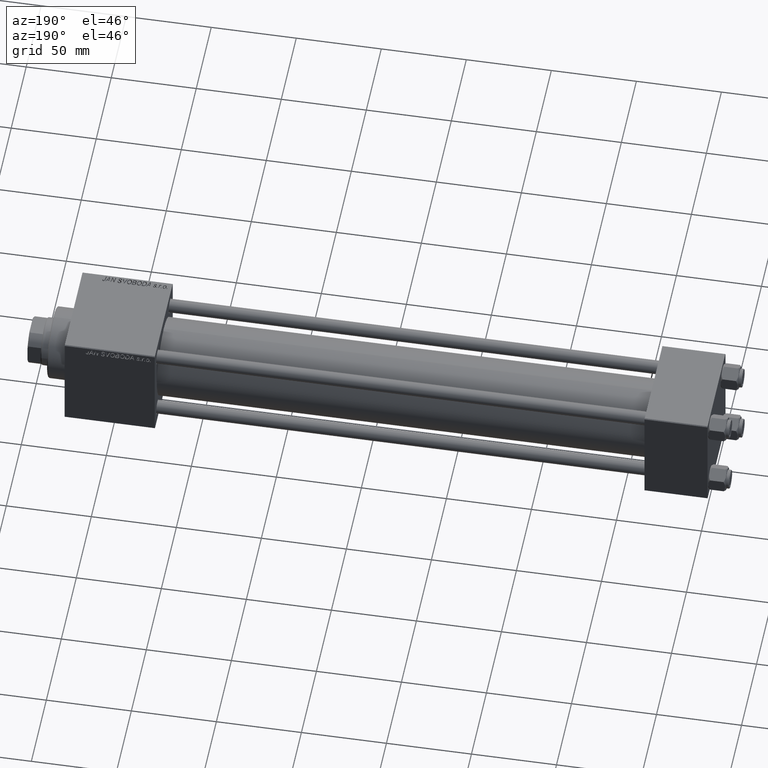
[diagram: clean part render]
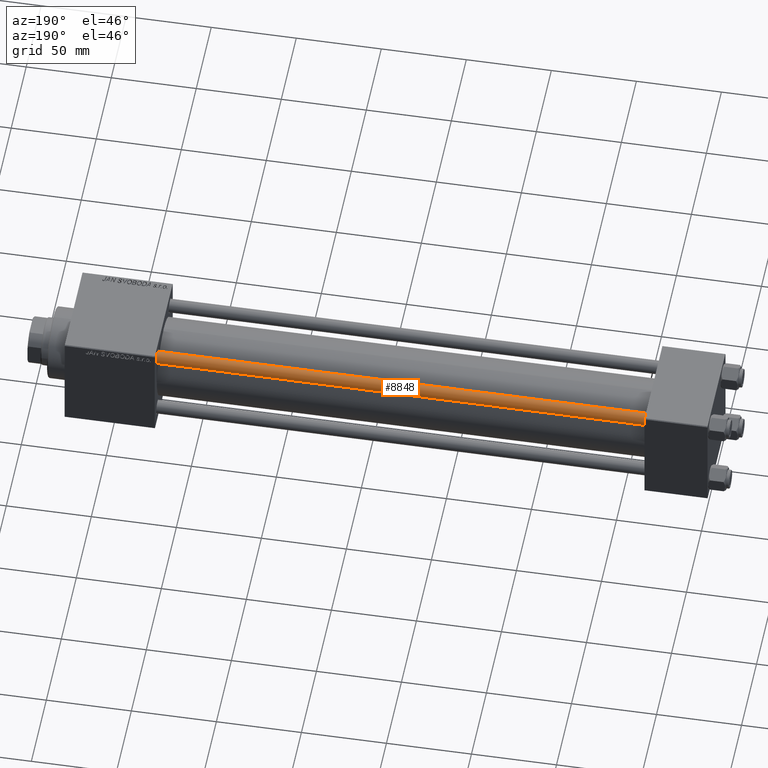
[diagram: same view with one face highlighted and labeled with its STEP entity id]
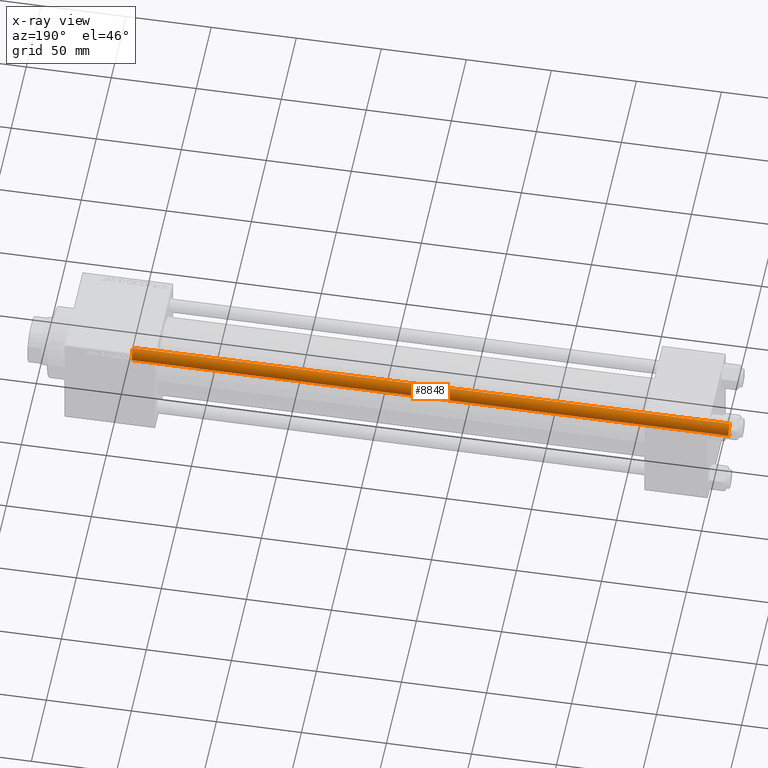
[diagram: x-ray of the same camera — body ghosted, the highlighted face saturated]
A machine part, auxiliary view. The second image highlights one B-rep face of the part: STEP entity #8848.
The next image is the same camera in x-ray: the body ghosted, the highlighted face saturated — about 0% of this face is hidden behind the body in this view.
In plain terms, the highlighted cylindrical surface (edge-blend (fillet) strip) has radius 4 mm, axis along (-1, 0, 0).
Its self-contained STEP definition (entity closure, byte-faithful):
#1541 = CARTESIAN_POINT ( 'NONE',  ( 0.000000000000000000, 0.000000000000000000, 351.5000000000000000 ) ) ;
#2574 = CARTESIAN_POINT ( 'NONE',  ( 4.000000000000000000, 4.898587196589412829E-16, 0.5000000000000004441 ) ) ;
#2982 = CARTESIAN_POINT ( 'NONE',  ( -4.000000000000000000, 0.000000000000000000, 352.0000000000000000 ) ) ;
#3499 = VERTEX_POINT ( 'NONE', #31214 ) ;
#4058 = DIRECTION ( 'NONE',  ( -0.000000000000000000, -0.000000000000000000, -1.000000000000000000 ) ) ;
#4218 = ORIENTED_EDGE ( 'NONE', *, *, #42644, .F. ) ;
#8848 = ADVANCED_FACE ( 'NONE', ( #39476 ), #20163, .T. ) ;
#9007 = DIRECTION ( 'NONE',  ( -1.000000000000000000, 0.000000000000000000, 0.000000000000000000 ) ) ;
#10359 = DIRECTION ( 'NONE',  ( 1.000000000000000000, 0.000000000000000000, 0.000000000000000000 ) ) ;
#11289 = VERTEX_POINT ( 'NONE', #2574 ) ;
#13924 = VERTEX_POINT ( 'NONE', #19871 ) ;
#16373 = DIRECTION ( 'NONE',  ( -0.000000000000000000, -0.000000000000000000, -1.000000000000000000 ) ) ;
#17404 = AXIS2_PLACEMENT_3D ( 'NONE', #18198, #37525, #10359 ) ;
#18198 = CARTESIAN_POINT ( 'NONE',  ( 0.000000000000000000, 0.000000000000000000, 0.5000000000000004441 ) ) ;
#18692 = LINE ( 'NONE', #2982, #31480 ) ;
#19871 = CARTESIAN_POINT ( 'NONE',  ( 4.000000000000000000, 4.898587196589412829E-16, 351.5000000000000000 ) ) ;
#20163 = CYLINDRICAL_SURFACE ( 'NONE', #42892, 4.000000000000000000 ) ;
#21116 = EDGE_LOOP ( 'NONE', ( #38597, #32505, #29351, #4218 ) ) ;
#21361 = AXIS2_PLACEMENT_3D ( 'NONE', #1541, #39638, #28679 ) ;
#24528 = EDGE_CURVE ( 'NONE', #3499, #13924, #33547, .T. ) ;
#25833 = DIRECTION ( 'NONE',  ( -0.000000000000000000, -0.000000000000000000, -1.000000000000000000 ) ) ;
#26043 = CARTESIAN_POINT ( 'NONE',  ( -4.000000000000000000, 0.000000000000000000, 0.5000000000000004441 ) ) ;
#27394 = LINE ( 'NONE', #38846, #42832 ) ;
#27520 = EDGE_CURVE ( 'NONE', #11289, #29340, #39328, .T. ) ;
#28290 = CARTESIAN_POINT ( 'NONE',  ( 0.000000000000000000, 0.000000000000000000, 352.0000000000000000 ) ) ;
#28679 = DIRECTION ( 'NONE',  ( 1.000000000000000000, 0.000000000000000000, 0.000000000000000000 ) ) ;
#29340 = VERTEX_POINT ( 'NONE', #26043 ) ;
#29351 = ORIENTED_EDGE ( 'NONE', *, *, #27520, .T. ) ;
#31214 = CARTESIAN_POINT ( 'NONE',  ( -4.000000000000000000, 0.000000000000000000, 351.5000000000000000 ) ) ;
#31480 = VECTOR ( 'NONE', #25833, 1000.000000000000000 ) ;
#32505 = ORIENTED_EDGE ( 'NONE', *, *, #43293, .T. ) ;
#33547 = CIRCLE ( 'NONE', #21361, 4.000000000000000000 ) ;
#37525 = DIRECTION ( 'NONE',  ( -0.000000000000000000, -0.000000000000000000, 1.000000000000000000 ) ) ;
#38597 = ORIENTED_EDGE ( 'NONE', *, *, #24528, .T. ) ;
#38846 = CARTESIAN_POINT ( 'NONE',  ( 4.000000000000000000, 4.898587196589412829E-16, 352.0000000000000000 ) ) ;
#39328 = CIRCLE ( 'NONE', #17404, 4.000000000000000000 ) ;
#39476 = FACE_OUTER_BOUND ( 'NONE', #21116, .T. ) ;
#39638 = DIRECTION ( 'NONE',  ( 0.000000000000000000, 0.000000000000000000, -1.000000000000000000 ) ) ;
#42644 = EDGE_CURVE ( 'NONE', #3499, #29340, #18692, .T. ) ;
#42832 = VECTOR ( 'NONE', #4058, 1000.000000000000000 ) ;
#42892 = AXIS2_PLACEMENT_3D ( 'NONE', #28290, #16373, #9007 ) ;
#43293 = EDGE_CURVE ( 'NONE', #13924, #11289, #27394, .T. ) ;